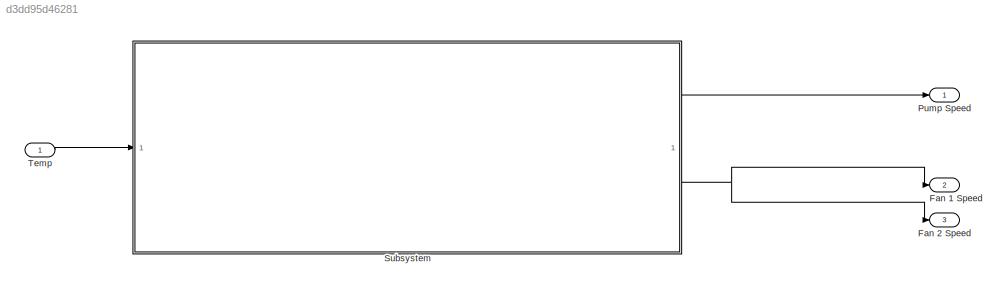
MODEL slx_d3dd95d46281
KIND model
CONFIG AbsTol = auto
CONFIG EnableMultiTasking = off
CONFIG FixedStep = auto
CONFIG MaxStep = auto
CONFIG MinStep = auto
CONFIG RelTol = 1e-3
CONFIG SampleTimeConstraint = Unconstrained
CONFIG SolverName = VariableStepAuto
CONFIG StartTime = 0.0
CONFIG StopTime = 10.0
BLOCK [Outport] Fan 1 Speed
  Port = 2
BLOCK [Outport] Fan 2 Speed
  Port = 3
BLOCK [Outport] Pump Speed
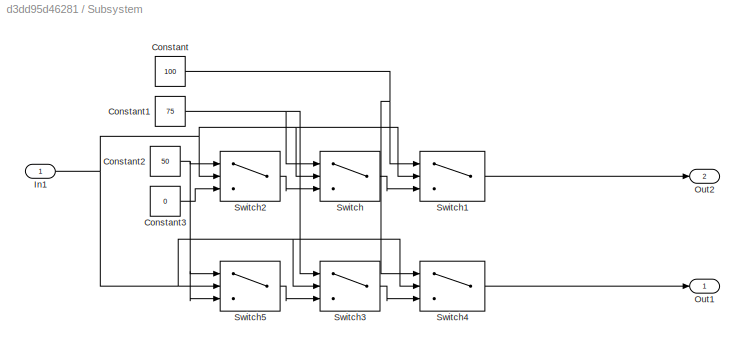
BLOCK [SubSystem] Subsystem
BLOCK [Constant] Subsystem/Constant
  Value = 100
BLOCK [Constant] Subsystem/Constant1
  Value = 75
BLOCK [Constant] Subsystem/Constant2
  Value = 50
BLOCK [Constant] Subsystem/Constant3
  Value = 0
BLOCK [Inport] Subsystem/In1
BLOCK [Outport] Subsystem/Out1
BLOCK [Outport] Subsystem/Out2
  Port = 2
BLOCK [Switch] Subsystem/Switch
  InputSameDT = off
  SaturateOnIntegerOverflow = off
  Threshold = 40
BLOCK [Switch] Subsystem/Switch1
  InputSameDT = off
  SaturateOnIntegerOverflow = off
  Threshold = 50
BLOCK [Switch] Subsystem/Switch2
  InputSameDT = off
  SaturateOnIntegerOverflow = off
  Threshold = 30
BLOCK [Switch] Subsystem/Switch3
  InputSameDT = off
  SaturateOnIntegerOverflow = off
  Threshold = 40
BLOCK [Switch] Subsystem/Switch4
  InputSameDT = off
  SaturateOnIntegerOverflow = off
  Threshold = 50
BLOCK [Switch] Subsystem/Switch5
  InputSameDT = off
  SaturateOnIntegerOverflow = off
  Threshold = 30
BLOCK [Inport] Temp
NET Subsystem/Constant1:1 -> Subsystem/Switch3:1, Subsystem/Switch:1
NET Subsystem/Constant2:1 -> Subsystem/Switch2:1, Subsystem/Switch5:1, Subsystem/Switch5:3
LINE Subsystem/Constant3:1 -> Subsystem/Switch2:3
NET Subsystem/Constant:1 -> Subsystem/Switch1:1, Subsystem/Switch4:1
NET Subsystem/In1:1 -> Subsystem/Switch1:2, Subsystem/Switch2:2, Subsystem/Switch3:2, Subsystem/Switch4:2, Subsystem/Switch5:2, Subsystem/Switch:2
LINE Subsystem/Switch1:1 -> Subsystem/Out2:1
LINE Subsystem/Switch2:1 -> Subsystem/Switch:3
LINE Subsystem/Switch3:1 -> Subsystem/Switch4:3
LINE Subsystem/Switch4:1 -> Subsystem/Out1:1
LINE Subsystem/Switch5:1 -> Subsystem/Switch3:3
LINE Subsystem/Switch:1 -> Subsystem/Switch1:3
LINE Subsystem:1 -> Pump Speed:1
NET Subsystem:2 -> Fan 1 Speed:1, Fan 2 Speed:1
LINE Temp:1 -> Subsystem:1
note: NET lines group one-source signal fan-out (src -> all destinations, sorted); 1:1 wires keep LINE
